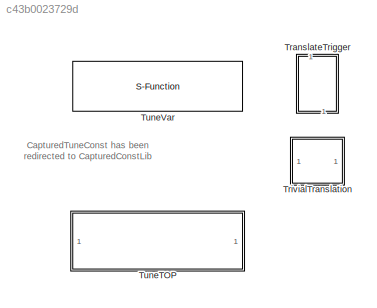
MODEL slx_c43b0023729d
KIND library
CONFIG AbsTol = auto
CONFIG EnableMultiTasking = off
CONFIG FixedStep = auto
CONFIG MaxStep = auto
CONFIG MinStep = auto
CONFIG RelTol = 1e-3
CONFIG SampleTimeConstraint = Unconstrained
CONFIG SolverName = VariableStepAuto
CONFIG StartTime = 0.0
CONFIG StopTime = 10.0
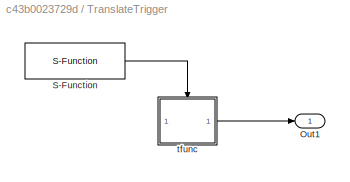
BLOCK [SubSystem] TranslateTrigger
  MoveFcn = TranslateTriggerMask.CB_TriggerInit(gcbh);
  NameLocation = right
BLOCK [Outport] TranslateTrigger/Out1
  VectorParamsAs1DForOutWhenUnconnected = off
BLOCK [S-Function] TranslateTrigger/S-Function
  EnableBusSupport = off
  FunctionName = TranslateTrigger
  Parameters = CodeID,Tunes,TOPs,0
  SFcnIsStateOwnerBlock = off
  SFunctionDeploymentMode = off
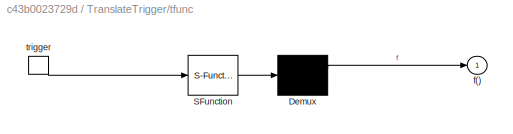
BLOCK [SubSystem] TranslateTrigger/tfunc
  ErrorFcn = Stateflow.Translate.translate
  PermitHierarchicalResolution = ExplicitOnly
  RTWFcnNameOpts = User specified
  RTWFileName = RtcReqRspHandlers
  RTWSystemCode = Nonreusable function
  SFBlockType = MATLAB Function
  TreatAsAtomicUnit = on
BLOCK [Demux] TranslateTrigger/tfunc/ Demux 
  Outputs = 1
BLOCK [S-Function] TranslateTrigger/tfunc/ SFunction 
  EnableBusSupport = off
  FunctionName = sf_sfun
  PortCounts = [1 1]
  SFcnIsStateOwnerBlock = off
  SFunctionDeploymentMode = off
  Tag = Stateflow S-Function 9
BLOCK [Outport] TranslateTrigger/tfunc/f()
  VectorParamsAs1DForOutWhenUnconnected = off
BLOCK [TriggerPort] TranslateTrigger/tfunc/trigger
  ShowOutputPort = on
  StatesWhenEnabling = held
  TriggerType = function-call
  VariantControl = (inherit)
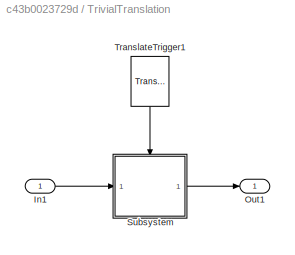
BLOCK [SubSystem] TrivialTranslation
  MoveFcn = TrivialTranslationMask.CB_TriggerInit(gcbh);
BLOCK [Inport] TrivialTranslation/In1
BLOCK [Outport] TrivialTranslation/Out1
  VectorParamsAs1DForOutWhenUnconnected = off
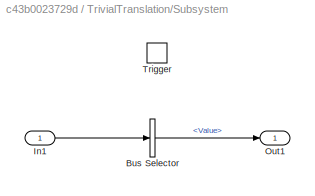
BLOCK [SubSystem] TrivialTranslation/Subsystem
BLOCK [BusSelector] TrivialTranslation/Subsystem/Bus Selector
  OutputSignals = Value
BLOCK [Inport] TrivialTranslation/Subsystem/In1
BLOCK [Outport] TrivialTranslation/Subsystem/Out1
  VectorParamsAs1DForOutWhenUnconnected = off
BLOCK [TriggerPort] TrivialTranslation/Subsystem/Trigger
  PortDimensions = 1
  StatesWhenEnabling = held
  TriggerType = function-call
  VariantControl = Variant
BLOCK [Reference] TrivialTranslation/TranslateTrigger1  REF=$bdroot/TranslateTrigger
  NameLocation = left
  SourceBlock = $bdroot/TranslateTrigger
  SourceType = Talaria Translate Trigger
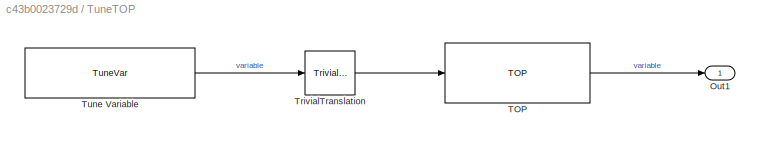
BLOCK [SubSystem] TuneTOP
  MoveFcn = TuneTOP_Mask.CB_TriggerInit(gcbh);
BLOCK [Outport] TuneTOP/Out1
  VectorParamsAs1DForOutWhenUnconnected = off
BLOCK [Reference] TuneTOP/TOP  REF=TOP/TOP
  SourceBlock = TOP/TOP
  SourceProductName = Bose Talaria
  SourceType = Talaria Target Overlay Parameter
BLOCK [Reference] TuneTOP/TrivialTranslation  REF=$bdroot/TrivialTranslation
  SourceBlock = $bdroot/TrivialTranslation
  SourceType = Talaria Trivial Translation
BLOCK [Reference] TuneTOP/Tune Variable  REF=$bdroot/TuneVar
  SourceBlock = $bdroot/TuneVar
  SourceType = Talaria Tune Variable
BLOCK [S-Function] TuneVar
  EnableBusSupport = off
  FunctionName = TuneVarMEX
  MoveFcn = TuneVarMask.CB_TriggerInit(gcbh);
  Parameters = activeTunePath,triggers,outValue.Size,outValue.Value,busName,stringParse,VariableDim,0
  SFcnIsStateOwnerBlock = off
  SFunctionDeploymentMode = off
ANNOTATION (root): CapturedTuneConst has been redirected to CapturedConstLib
LINE TrivialTranslation/In1:1 -> TrivialTranslation/Subsystem:1
LINE TrivialTranslation/Subsystem/Bus Selector:1 -> TrivialTranslation/Subsystem/Out1:1
LINE TrivialTranslation/Subsystem/In1:1 -> TrivialTranslation/Subsystem/Bus Selector:1
LINE TrivialTranslation/Subsystem:1 -> TrivialTranslation/Out1:1
LINE TrivialTranslation/TranslateTrigger1:1 -> TrivialTranslation/Subsystem:trigger
CHART TranslateTrigger/tfunc states=1 transitions=1
  STATE_LABEL 'eML_blk_kernel()'
  STATE_LABEL 'SCRIPT:\nfunction fcn\n% Invoke the function trigger output\nf();\n'
CHART  states=0 transitions=0
